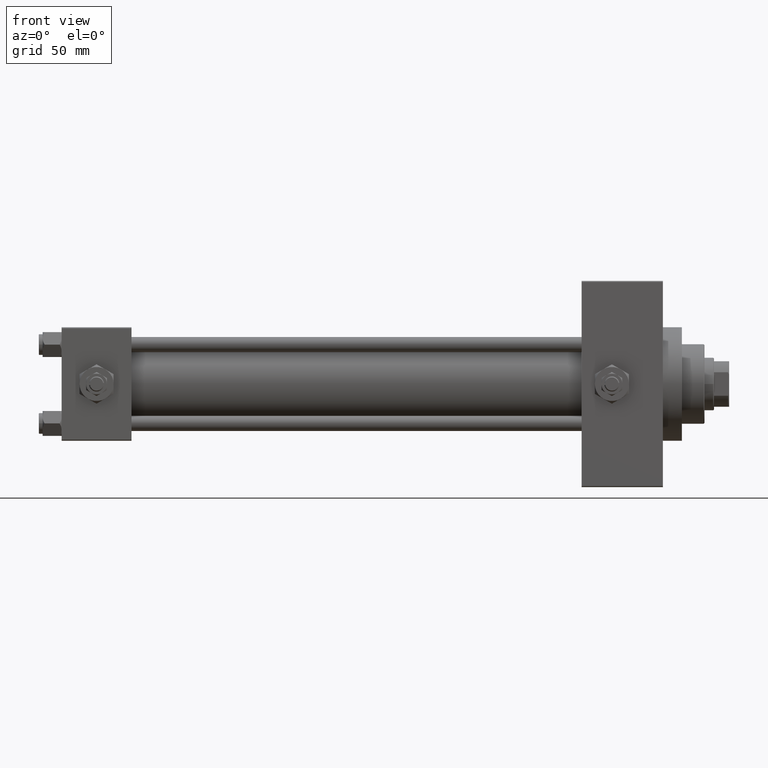
[diagram: clean part render]
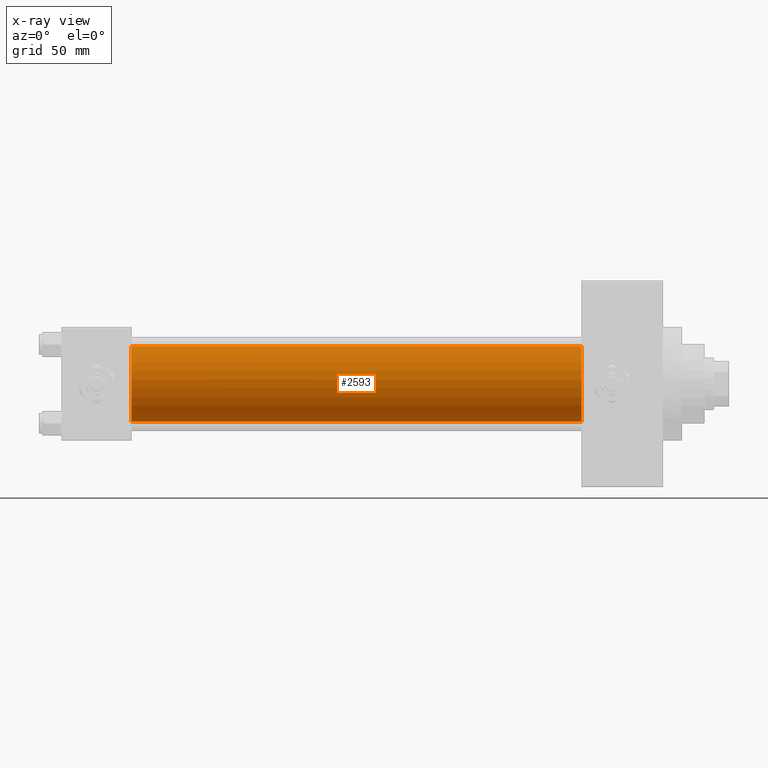
[diagram: x-ray — body ghosted, one internal face saturated and labeled with its STEP entity id]
A machine part, front view, then the same camera in x-ray: the body is ghosted and one INTERNAL B-rep face — a face not visible from any outside direction — is saturated and labeled: STEP entity #2593.
In plain terms, the highlighted cylindrical surface (partial cylindrical patch) has radius 20 mm, axis along (-1, -0, -0).
Its self-contained STEP definition (entity closure, byte-faithful):
#1803 = CARTESIAN_POINT ( 'NONE',  ( 274.9999999999999432, -2.602085213965210642E-15, 0.000000000000000000 ) ) ;
#1979 = VERTEX_POINT ( 'NONE', #38856 ) ;
#2593 = ADVANCED_FACE ( 'NONE', ( #25203 ), #10025, .F. ) ;
#3123 = CARTESIAN_POINT ( 'NONE',  ( 37.00000000000000000, -1.527916156705042519E-16, -20.00000000000000000 ) ) ;
#4891 = AXIS2_PLACEMENT_3D ( 'NONE', #1803, #21466, #28953 ) ;
#7506 = LINE ( 'NONE', #18939, #21798 ) ;
#8155 = EDGE_CURVE ( 'NONE', #1979, #31396, #7506, .T. ) ;
#10019 = CARTESIAN_POINT ( 'NONE',  ( 37.00000000000000000, -2.602085213965210642E-15, 20.00000000000000000 ) ) ;
#10025 = CYLINDRICAL_SURFACE ( 'NONE', #4891, 20.00000000000000000 ) ;
#12427 = CIRCLE ( 'NONE', #46610, 20.00000000000000000 ) ;
#12989 = VECTOR ( 'NONE', #17354, 1000.000000000000000 ) ;
#13634 = CARTESIAN_POINT ( 'NONE',  ( 274.9999999999999432, -1.527916156705042519E-16, -20.00000000000000000 ) ) ;
#15002 = CARTESIAN_POINT ( 'NONE',  ( 274.9999999999999432, -2.602085213965210642E-15, 0.000000000000000000 ) ) ;
#15242 = DIRECTION ( 'NONE',  ( 1.000000000000000000, 0.000000000000000000, 0.000000000000000000 ) ) ;
#15451 = EDGE_CURVE ( 'NONE', #31396, #44597, #33074, .T. ) ;
#17354 = DIRECTION ( 'NONE',  ( -1.000000000000000000, -0.000000000000000000, -0.000000000000000000 ) ) ;
#17597 = LINE ( 'NONE', #13634, #12989 ) ;
#18939 = CARTESIAN_POINT ( 'NONE',  ( 274.9999999999999432, -2.602085213965210642E-15, 20.00000000000000000 ) ) ;
#19591 = ORIENTED_EDGE ( 'NONE', *, *, #24852, .T. ) ;
#20133 = ORIENTED_EDGE ( 'NONE', *, *, #35232, .T. ) ;
#21466 = DIRECTION ( 'NONE',  ( -1.000000000000000000, -0.000000000000000000, -0.000000000000000000 ) ) ;
#21798 = VECTOR ( 'NONE', #44619, 1000.000000000000000 ) ;
#21908 = CARTESIAN_POINT ( 'NONE',  ( 274.9999999999999432, -1.527916156705042519E-16, -20.00000000000000000 ) ) ;
#24852 = EDGE_CURVE ( 'NONE', #39064, #44597, #17597, .T. ) ;
#25203 = FACE_OUTER_BOUND ( 'NONE', #40987, .T. ) ;
#25459 = DIRECTION ( 'NONE',  ( 0.000000000000000000, 0.000000000000000000, -1.000000000000000000 ) ) ;
#27103 = ORIENTED_EDGE ( 'NONE', *, *, #8155, .F. ) ;
#28953 = DIRECTION ( 'NONE',  ( 0.000000000000000000, 0.000000000000000000, 1.000000000000000000 ) ) ;
#31396 = VERTEX_POINT ( 'NONE', #10019 ) ;
#32867 = CARTESIAN_POINT ( 'NONE',  ( 37.00000000000000000, -2.602085213965210642E-15, 0.000000000000000000 ) ) ;
#33074 = CIRCLE ( 'NONE', #41860, 20.00000000000000000 ) ;
#35232 = EDGE_CURVE ( 'NONE', #1979, #39064, #12427, .T. ) ;
#36114 = DIRECTION ( 'NONE',  ( 1.000000000000000000, 0.000000000000000000, 0.000000000000000000 ) ) ;
#38856 = CARTESIAN_POINT ( 'NONE',  ( 274.9999999999999432, -2.602085213965210642E-15, 20.00000000000000000 ) ) ;
#39064 = VERTEX_POINT ( 'NONE', #21908 ) ;
#40987 = EDGE_LOOP ( 'NONE', ( #20133, #19591, #44879, #27103 ) ) ;
#41860 = AXIS2_PLACEMENT_3D ( 'NONE', #32867, #36114, #48077 ) ;
#44597 = VERTEX_POINT ( 'NONE', #3123 ) ;
#44619 = DIRECTION ( 'NONE',  ( -1.000000000000000000, -0.000000000000000000, -0.000000000000000000 ) ) ;
#44879 = ORIENTED_EDGE ( 'NONE', *, *, #15451, .F. ) ;
#46610 = AXIS2_PLACEMENT_3D ( 'NONE', #15002, #15242, #25459 ) ;
#48077 = DIRECTION ( 'NONE',  ( 0.000000000000000000, 0.000000000000000000, -1.000000000000000000 ) ) ;